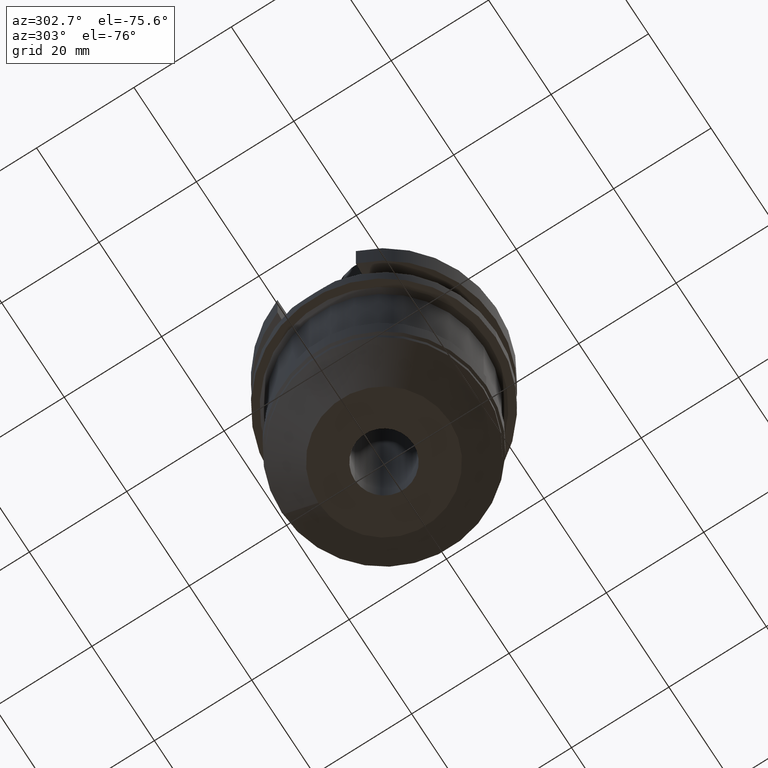
[diagram: clean part render]
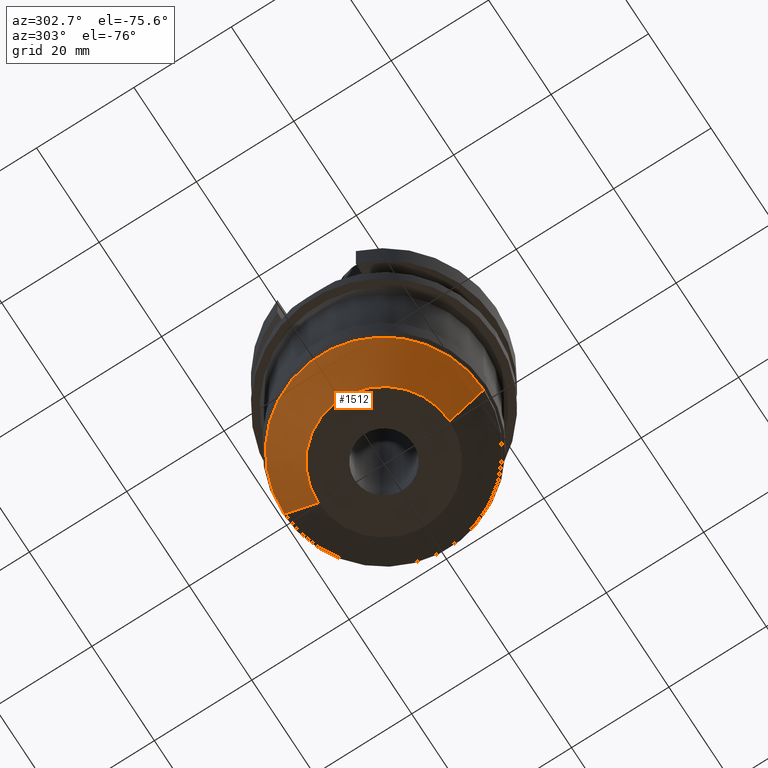
[diagram: same view with one face highlighted and labeled with its STEP entity id]
A machine part, auxiliary view. The second image highlights one B-rep face of the part: STEP entity #1512.
In plain terms, the highlighted conical surface has half-angle 45 deg.
Its self-contained STEP definition (entity closure, byte-faithful):
#270=CARTESIAN_POINT('',(0.E0,0.E0,-6.E1));
#271=DIRECTION('',(0.E0,0.E0,1.E0));
#272=DIRECTION('',(0.E0,1.E0,0.E0));
#273=AXIS2_PLACEMENT_3D('',#270,#271,#272);
#294=DIRECTION('',(0.E0,-7.071067811865E-1,-7.071067811865E-1));
#295=VECTOR('',#294,9.899494936612E0);
#296=CARTESIAN_POINT('',(0.E0,2.05E1,-5.3E1));
#297=LINE('',#296,#295);
#309=CARTESIAN_POINT('',(0.E0,0.E0,-5.3E1));
#310=DIRECTION('',(0.E0,0.E0,1.E0));
#311=DIRECTION('',(0.E0,1.E0,0.E0));
#312=AXIS2_PLACEMENT_3D('',#309,#310,#311);
#317=DIRECTION('',(0.E0,7.071067811865E-1,-7.071067811865E-1));
#318=VECTOR('',#317,9.899494936612E0);
#319=CARTESIAN_POINT('',(0.E0,-2.05E1,-5.3E1));
#320=LINE('',#319,#318);
#1123=CARTESIAN_POINT('',(0.E0,-1.35E1,-6.E1));
#1124=CARTESIAN_POINT('',(0.E0,1.35E1,-6.E1));
#1125=VERTEX_POINT('',#1123);
#1126=VERTEX_POINT('',#1124);
#1127=CARTESIAN_POINT('',(0.E0,2.05E1,-5.3E1));
#1128=VERTEX_POINT('',#1127);
#1129=CARTESIAN_POINT('',(0.E0,-2.05E1,-5.3E1));
#1130=VERTEX_POINT('',#1129);
#1500=CARTESIAN_POINT('',(0.E0,0.E0,-5.65E1));
#1501=DIRECTION('',(0.E0,0.E0,1.E0));
#1502=DIRECTION('',(0.E0,1.E0,0.E0));
#1503=AXIS2_PLACEMENT_3D('',#1500,#1501,#1502);
#1504=CONICAL_SURFACE('',#1503,1.7E1,4.5E1);
#1505=ORIENTED_EDGE('',*,*,#1490,.F.);
#1507=ORIENTED_EDGE('',*,*,#1506,.T.);
#1508=ORIENTED_EDGE('',*,*,#1493,.T.);
#1509=ORIENTED_EDGE('',*,*,#1476,.F.);
#1510=EDGE_LOOP('',(#1505,#1507,#1508,#1509));
#1511=FACE_OUTER_BOUND('',#1510,.F.);
#274=CIRCLE('',#273,1.35E1);
#313=CIRCLE('',#312,2.05E1);
#1476=EDGE_CURVE('',#1126,#1125,#274,.T.);
#1490=EDGE_CURVE('',#1128,#1126,#297,.T.);
#1493=EDGE_CURVE('',#1130,#1125,#320,.T.);
#1506=EDGE_CURVE('',#1128,#1130,#313,.T.);
#1512=ADVANCED_FACE('',(#1511),#1504,.T.);